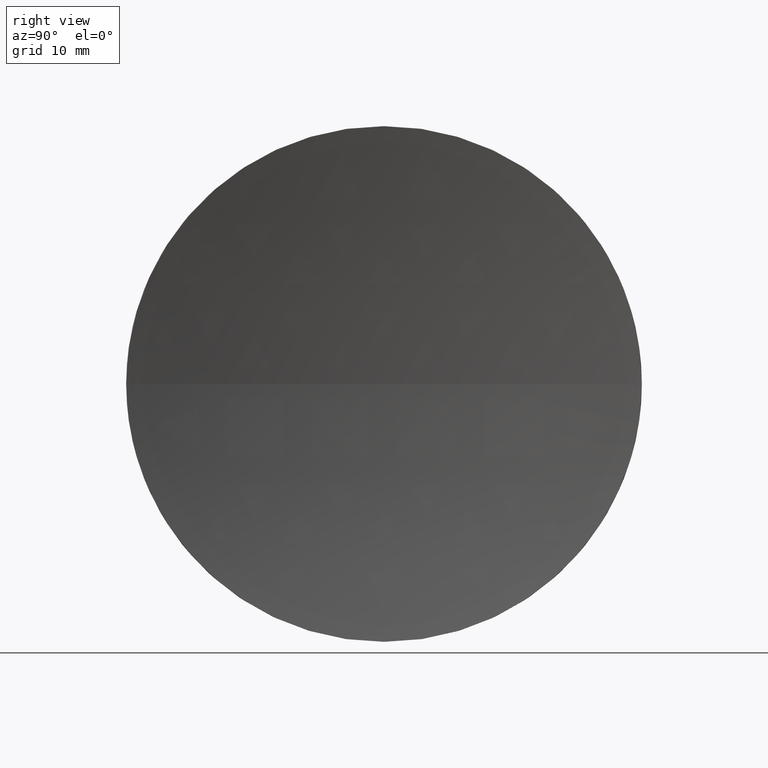
[diagram: clean part render]
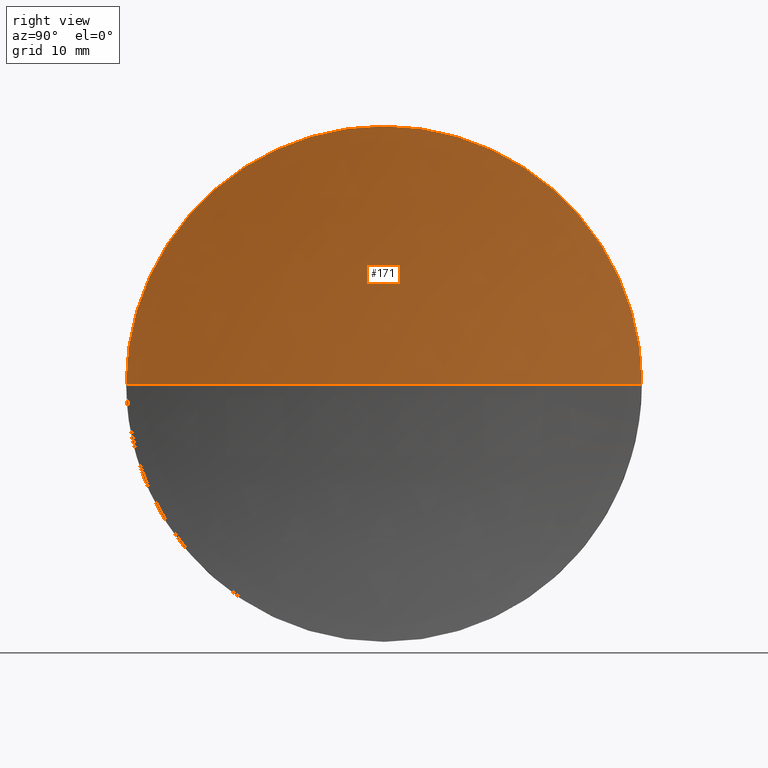
[diagram: same view with one face highlighted and labeled with its STEP entity id]
A machine part, right view. The second image highlights one B-rep face of the part: STEP entity #171.
In plain terms, the highlighted spherical surface has radius 129.24 mm.
Its self-contained STEP definition (entity closure, byte-faithful):
#18 = AXIS2_PLACEMENT_3D ( 'NONE', #35, #63, #175 ) ;
#22 = CIRCLE ( 'NONE', #92, 24.99999999999998200 ) ;
#25 = CIRCLE ( 'NONE', #120, 129.2399999999999800 ) ;
#35 = CARTESIAN_POINT ( 'NONE',  ( 119.1804718391806000, 65.15563045701519200, 0.0000000000000000000 ) ) ;
#40 = CIRCLE ( 'NONE', #80, 129.2399999999999800 ) ;
#47 = CARTESIAN_POINT ( 'NONE',  ( 116.7394371346435000, 65.15563045701517800, 0.0000000000000000000 ) ) ;
#55 = SPHERICAL_SURFACE ( 'NONE', #119, 129.2399999999999800 ) ;
#58 = ORIENTED_EDGE ( 'NONE', *, *, #169, .F. ) ;
#63 = DIRECTION ( 'NONE',  ( -1.000000000000000000, -0.0000000000000000000, -0.0000000000000000000 ) ) ;
#64 = CARTESIAN_POINT ( 'NONE',  ( 119.1804718391806000, 65.15563045701519200, 0.0000000000000000000 ) ) ;
#70 = DIRECTION ( 'NONE',  ( 0.0000000000000000000, -1.000000000000000000, -1.224646799147353200E-016 ) ) ;
#76 = CARTESIAN_POINT ( 'NONE',  ( 245.9794371346434900, 65.15563045701519200, 0.0000000000000000000 ) ) ;
#77 = DIRECTION ( 'NONE',  ( -1.000000000000000000, 0.0000000000000000000, 0.0000000000000000000 ) ) ;
#79 = EDGE_LOOP ( 'NONE', ( #104, #148, #58, #160 ) ) ;
#80 = AXIS2_PLACEMENT_3D ( 'NONE', #113, #100, #70 ) ;
#84 = EDGE_CURVE ( 'NONE', #97, #85, #40, .T. ) ;
#85 = VERTEX_POINT ( 'NONE', #47 ) ;
#86 = CARTESIAN_POINT ( 'NONE',  ( 119.1804718391806000, 90.15563045701516400, 3.061616997868378300E-015 ) ) ;
#90 = DIRECTION ( 'NONE',  ( -1.000000000000000000, -0.0000000000000000000, -0.0000000000000000000 ) ) ;
#92 = AXIS2_PLACEMENT_3D ( 'NONE', #64, #90, #105 ) ;
#93 = VERTEX_POINT ( 'NONE', #152 ) ;
#97 = VERTEX_POINT ( 'NONE', #86 ) ;
#100 = DIRECTION ( 'NONE',  ( 0.0000000000000000000, -1.224646799147353200E-016, 1.000000000000000000 ) ) ;
#104 = ORIENTED_EDGE ( 'NONE', *, *, #84, .F. ) ;
#105 = DIRECTION ( 'NONE',  ( 0.0000000000000000000, 0.0000000000000000000, 1.000000000000000000 ) ) ;
#106 = CARTESIAN_POINT ( 'NONE',  ( 245.9794371346434900, 65.15563045701519200, 0.0000000000000000000 ) ) ;
#112 = EDGE_CURVE ( 'NONE', #131, #97, #22, .T. ) ;
#113 = CARTESIAN_POINT ( 'NONE',  ( 245.9794371346434900, 65.15563045701519200, 0.0000000000000000000 ) ) ;
#114 = FACE_OUTER_BOUND ( 'NONE', #79, .T. ) ;
#117 = DIRECTION ( 'NONE',  ( 0.0000000000000000000, 0.0000000000000000000, 1.000000000000000000 ) ) ;
#118 = DIRECTION ( 'NONE',  ( 0.0000000000000000000, -1.000000000000000000, 0.0000000000000000000 ) ) ;
#119 = AXIS2_PLACEMENT_3D ( 'NONE', #106, #117, #118 ) ;
#120 = AXIS2_PLACEMENT_3D ( 'NONE', #76, #159, #77 ) ;
#124 = EDGE_CURVE ( 'NONE', #93, #85, #25, .T. ) ;
#131 = VERTEX_POINT ( 'NONE', #167 ) ;
#148 = ORIENTED_EDGE ( 'NONE', *, *, #112, .F. ) ;
#152 = CARTESIAN_POINT ( 'NONE',  ( 119.1804718391806000, 40.15563045701522800, 0.0000000000000000000 ) ) ;
#159 = DIRECTION ( 'NONE',  ( 0.0000000000000000000, 0.0000000000000000000, -1.000000000000000000 ) ) ;
#160 = ORIENTED_EDGE ( 'NONE', *, *, #124, .T. ) ;
#164 = CIRCLE ( 'NONE', #18, 24.99999999999998200 ) ;
#167 = CARTESIAN_POINT ( 'NONE',  ( 119.1804718391806000, 65.15563045701519200, 24.99999999999998200 ) ) ;
#169 = EDGE_CURVE ( 'NONE', #93, #131, #164, .T. ) ;
#171 = ADVANCED_FACE ( 'NONE', ( #114 ), #55, .F. ) ;
#175 = DIRECTION ( 'NONE',  ( 0.0000000000000000000, 0.0000000000000000000, 1.000000000000000000 ) ) ;